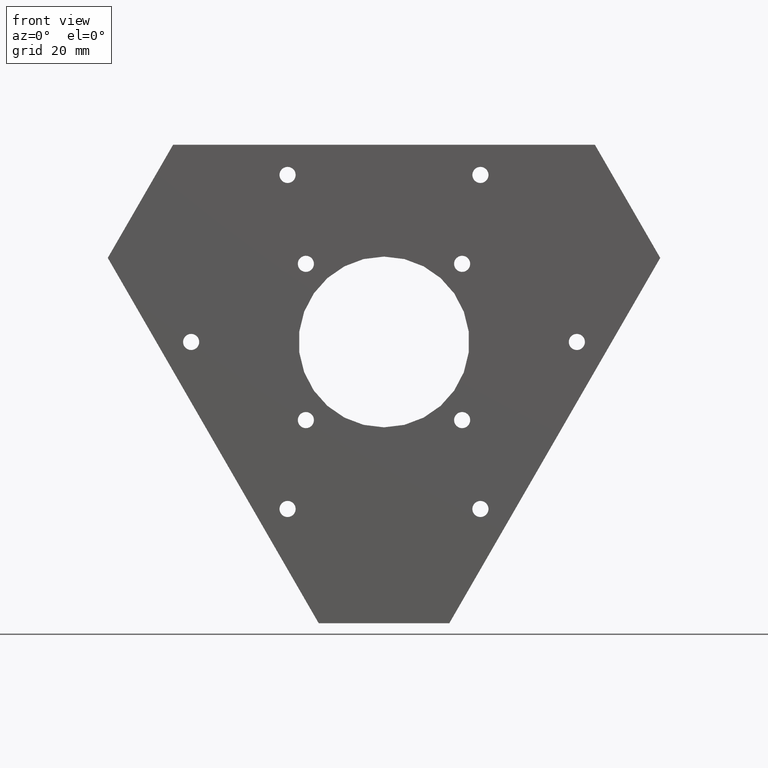
[diagram: clean part render]
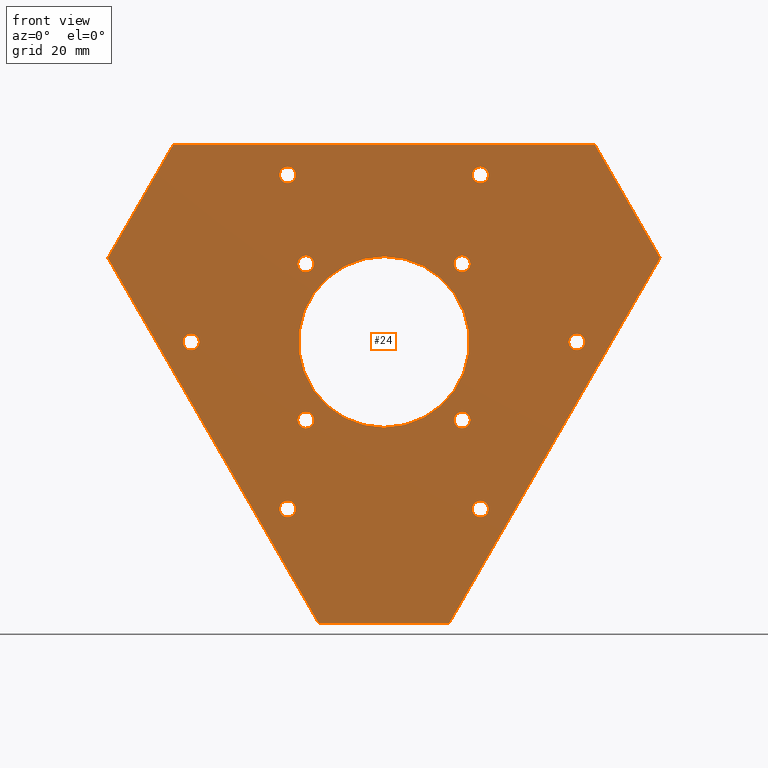
[diagram: same view with one face highlighted and labeled with its STEP entity id]
A machine part, front view. The second image highlights one B-rep face of the part: STEP entity #24.
In plain terms, the highlighted planar face has unit normal (0, 1, 0).
Its self-contained STEP definition (entity closure, byte-faithful):
#24 = ADVANCED_FACE ( 'NONE', ( #921, #920, #919, #918, #917, #916, #915, #914, #913, #912, #911, #910 ), #229, .F. ) ;
#34 = VERTEX_POINT ( 'NONE', #206 ) ;
#35 = CARTESIAN_POINT ( 'NONE',  ( -1.200000000000001500, 0.0000000000000000000, 2.078460969082651700 ) ) ;
#36 = VERTEX_POINT ( 'NONE', #205 ) ;
#39 = VERTEX_POINT ( 'NONE', #202 ) ;
#40 = VERTEX_POINT ( 'NONE', #201 ) ;
#43 = VERTEX_POINT ( 'NONE', #198 ) ;
#44 = VERTEX_POINT ( 'NONE', #197 ) ;
#45 = VERTEX_POINT ( 'NONE', #196 ) ;
#49 = VERTEX_POINT ( 'NONE', #193 ) ;
#50 = VERTEX_POINT ( 'NONE', #192 ) ;
#52 = VERTEX_POINT ( 'NONE', #190 ) ;
#56 = VERTEX_POINT ( 'NONE', #186 ) ;
#57 = VERTEX_POINT ( 'NONE', #185 ) ;
#61 = VERTEX_POINT ( 'NONE', #182 ) ;
#64 = VERTEX_POINT ( 'NONE', #179 ) ;
#65 = VERTEX_POINT ( 'NONE', #178 ) ;
#68 = VERTEX_POINT ( 'NONE', #175 ) ;
#69 = VERTEX_POINT ( 'NONE', #174 ) ;
#70 = VERTEX_POINT ( 'NONE', #173 ) ;
#72 = VERTEX_POINT ( 'NONE', #171 ) ;
#75 = VERTEX_POINT ( 'NONE', #168 ) ;
#77 = VERTEX_POINT ( 'NONE', #166 ) ;
#82 = VERTEX_POINT ( 'NONE', #163 ) ;
#83 = VERTEX_POINT ( 'NONE', #162 ) ;
#87 = VERTEX_POINT ( 'NONE', #159 ) ;
#88 = VERTEX_POINT ( 'NONE', #158 ) ;
#95 = DIRECTION ( 'NONE',  ( 0.0000000000000000000, 0.0000000000000000000, 1.000000000000000000 ) ) ;
#96 = DIRECTION ( 'NONE',  ( -0.0000000000000000000, 1.000000000000000000, -0.0000000000000000000 ) ) ;
#97 = CARTESIAN_POINT ( 'NONE',  ( 1.200000000000003100, 0.0000000000000000000, 2.078460969082650800 ) ) ;
#98 = VERTEX_POINT ( 'NONE', #153 ) ;
#99 = VERTEX_POINT ( 'NONE', #152 ) ;
#100 = VERTEX_POINT ( 'NONE', #151 ) ;
#112 = DIRECTION ( 'NONE',  ( 0.0000000000000000000, 0.0000000000000000000, 1.000000000000000000 ) ) ;
#113 = DIRECTION ( 'NONE',  ( -0.0000000000000000000, 1.000000000000000000, -0.0000000000000000000 ) ) ;
#114 = CARTESIAN_POINT ( 'NONE',  ( 0.9722718241314738400, -2.048885995248197400E-016, -0.9722718241315043700 ) ) ;
#122 = DIRECTION ( 'NONE',  ( 0.0000000000000000000, 0.0000000000000000000, 1.000000000000000000 ) ) ;
#123 = DIRECTION ( 'NONE',  ( -0.0000000000000000000, 1.000000000000000000, -0.0000000000000000000 ) ) ;
#124 = CARTESIAN_POINT ( 'NONE',  ( -0.9722718241315313500, -2.048885995248197400E-016, -0.9722718241314736200 ) ) ;
#132 = DIRECTION ( 'NONE',  ( 0.0000000000000000000, 0.0000000000000000000, 1.000000000000000000 ) ) ;
#133 = DIRECTION ( 'NONE',  ( -0.0000000000000000000, 1.000000000000000000, -0.0000000000000000000 ) ) ;
#134 = CARTESIAN_POINT ( 'NONE',  ( -0.9722718241315005900, -2.048885995248197400E-016, 0.9722718241315316800 ) ) ;
#147 = DIRECTION ( 'NONE',  ( 0.0000000000000000000, 0.0000000000000000000, 1.000000000000000000 ) ) ;
#149 = DIRECTION ( 'NONE',  ( -0.0000000000000000000, 1.000000000000000000, -0.0000000000000000000 ) ) ;
#150 = CARTESIAN_POINT ( 'NONE',  ( 0.9722718241315045900, -2.048885995248197400E-016, 0.9722718241315009300 ) ) ;
#151 = CARTESIAN_POINT ( 'NONE',  ( 0.0000000000000000000, 0.0000000000000000000, -1.062500000000000000 ) ) ;
#152 = CARTESIAN_POINT ( 'NONE',  ( -2.624785217660711800, 0.0000000000000000000, 2.453738644055909900 ) ) ;
#153 = CARTESIAN_POINT ( 'NONE',  ( 1.301187224094062400E-016, 0.0000000000000000000, 1.062500000000000000 ) ) ;
#158 = CARTESIAN_POINT ( 'NONE',  ( 2.400000000000000400, 0.0000000000000000000, 0.1005000000000243800 ) ) ;
#159 = CARTESIAN_POINT ( 'NONE',  ( 2.400000000000000400, 0.0000000000000000000, -0.1004999999999754700 ) ) ;
#162 = CARTESIAN_POINT ( 'NONE',  ( 1.199999999999939300, 0.0000000000000000000, -1.977960969082655800 ) ) ;
#163 = CARTESIAN_POINT ( 'NONE',  ( 1.199999999999939300, 0.0000000000000000000, -2.178960969082655900 ) ) ;
#166 = CARTESIAN_POINT ( 'NONE',  ( -1.200000000000061000, 0.0000000000000000000, -2.178960969082618600 ) ) ;
#168 = CARTESIAN_POINT ( 'NONE',  ( -0.9722718241315313500, -2.048885995248197400E-016, -0.8717718241314736900 ) ) ;
#171 = CARTESIAN_POINT ( 'NONE',  ( -0.9722718241315005900, -2.048885995248197400E-016, 1.072771824131531600 ) ) ;
#173 = CARTESIAN_POINT ( 'NONE',  ( -0.9722718241315313500, -2.048885995248197400E-016, -1.072771824131473400 ) ) ;
#174 = CARTESIAN_POINT ( 'NONE',  ( -2.400000000000029200, 0.0000000000000000000, 0.1005000000000528900 ) ) ;
#175 = CARTESIAN_POINT ( 'NONE',  ( -2.400000000000029200, 0.0000000000000000000, -0.1004999999999469700 ) ) ;
#178 = CARTESIAN_POINT ( 'NONE',  ( -1.200000000000001500, 0.0000000000000000000, 2.178960969082651500 ) ) ;
#179 = CARTESIAN_POINT ( 'NONE',  ( -1.200000000000001500, 0.0000000000000000000, 1.977960969082651600 ) ) ;
#182 = CARTESIAN_POINT ( 'NONE',  ( 1.200000000000003100, 0.0000000000000000000, 2.178960969082651000 ) ) ;
#185 = CARTESIAN_POINT ( 'NONE',  ( 0.9722718241314738400, -2.048885995248197400E-016, -0.8717718241315044500 ) ) ;
#186 = CARTESIAN_POINT ( 'NONE',  ( 0.9722718241314738400, -2.048885995248197400E-016, -1.072771824131504300 ) ) ;
#190 = CARTESIAN_POINT ( 'NONE',  ( -0.9722718241315005900, -2.048885995248197400E-016, 0.8717718241315317600 ) ) ;
#192 = CARTESIAN_POINT ( 'NONE',  ( 1.200000000000003100, 0.0000000000000000000, 1.977960969082651000 ) ) ;
#193 = CARTESIAN_POINT ( 'NONE',  ( 0.8126073911696439800, 0.0000000000000000000, -3.500000000000000000 ) ) ;
#196 = CARTESIAN_POINT ( 'NONE',  ( -1.200000000000061000, 0.0000000000000000000, -1.977960969082618800 ) ) ;
#197 = CARTESIAN_POINT ( 'NONE',  ( 0.9722718241315045900, -2.048885995248197400E-016, 1.072771824131500700 ) ) ;
#198 = CARTESIAN_POINT ( 'NONE',  ( 0.9722718241315045900, -2.048885995248197400E-016, 0.8717718241315010100 ) ) ;
#201 = CARTESIAN_POINT ( 'NONE',  ( -3.437392608830355900, 0.0000000000000000000, 1.046261355944089000 ) ) ;
#202 = CARTESIAN_POINT ( 'NONE',  ( -0.8126073911696442000, 0.0000000000000000000, -3.500000000000000400 ) ) ;
#205 = CARTESIAN_POINT ( 'NONE',  ( 3.437392608830355900, 0.0000000000000000000, 1.046261355944088800 ) ) ;
#206 = CARTESIAN_POINT ( 'NONE',  ( 2.624785217660712300, 0.0000000000000000000, 2.453738644055909900 ) ) ;
#226 = DIRECTION ( 'NONE',  ( 0.0000000000000000000, -0.0000000000000000000, 1.000000000000000000 ) ) ;
#227 = DIRECTION ( 'NONE',  ( 0.0000000000000000000, 1.000000000000000000, 0.0000000000000000000 ) ) ;
#228 = CARTESIAN_POINT ( 'NONE',  ( -2.624785217660711800, 0.0000000000000000000, 2.453738644055909900 ) ) ;
#229 = PLANE ( 'NONE',  #545 ) ;
#278 = DIRECTION ( 'NONE',  ( -0.0000000000000000000, 1.000000000000000000, -0.0000000000000000000 ) ) ;
#288 = DIRECTION ( 'NONE',  ( 0.0000000000000000000, 0.0000000000000000000, 1.000000000000000000 ) ) ;
#289 = DIRECTION ( 'NONE',  ( 0.0000000000000000000, 1.000000000000000000, 0.0000000000000000000 ) ) ;
#291 = CARTESIAN_POINT ( 'NONE',  ( 0.0000000000000000000, 0.0000000000000000000, 0.0000000000000000000 ) ) ;
#292 = DIRECTION ( 'NONE',  ( 1.000000000000000000, 0.0000000000000000000, 0.0000000000000000000 ) ) ;
#293 = CARTESIAN_POINT ( 'NONE',  ( -2.624785217660711800, 0.0000000000000000000, 2.453738644055909900 ) ) ;
#294 = DIRECTION ( 'NONE',  ( 0.4999999999999997200, 0.0000000000000000000, -0.8660254037844388200 ) ) ;
#296 = CARTESIAN_POINT ( 'NONE',  ( 2.624785217660712300, 0.0000000000000000000, 2.453738644055909900 ) ) ;
#297 = DIRECTION ( 'NONE',  ( -0.4999999999999998900, 0.0000000000000000000, -0.8660254037844386000 ) ) ;
#299 = CARTESIAN_POINT ( 'NONE',  ( 3.437392608830355900, 0.0000000000000000000, 1.046261355944088800 ) ) ;
#300 = DIRECTION ( 'NONE',  ( -1.000000000000000000, 0.0000000000000000000, -3.361830108057617300E-016 ) ) ;
#302 = CARTESIAN_POINT ( 'NONE',  ( 0.8126073911696439800, 0.0000000000000000000, -3.500000000000000000 ) ) ;
#303 = DIRECTION ( 'NONE',  ( -0.4999999999999998300, 0.0000000000000000000, 0.8660254037844386000 ) ) ;
#305 = CARTESIAN_POINT ( 'NONE',  ( -0.8126073911696442000, 0.0000000000000000000, -3.500000000000000400 ) ) ;
#306 = DIRECTION ( 'NONE',  ( 0.5000000000000000000, 0.0000000000000000000, 0.8660254037844386000 ) ) ;
#307 = CARTESIAN_POINT ( 'NONE',  ( -3.437392608830355900, 0.0000000000000000000, 1.046261355944089000 ) ) ;
#308 = DIRECTION ( 'NONE',  ( 0.0000000000000000000, 0.0000000000000000000, 1.000000000000000000 ) ) ;
#310 = DIRECTION ( 'NONE',  ( -0.0000000000000000000, 1.000000000000000000, -0.0000000000000000000 ) ) ;
#311 = CARTESIAN_POINT ( 'NONE',  ( 2.400000000000000400, 0.0000000000000000000, 2.445003954329515600E-014 ) ) ;
#313 = DIRECTION ( 'NONE',  ( 0.0000000000000000000, 0.0000000000000000000, 1.000000000000000000 ) ) ;
#314 = DIRECTION ( 'NONE',  ( -0.0000000000000000000, 1.000000000000000000, -0.0000000000000000000 ) ) ;
#315 = CARTESIAN_POINT ( 'NONE',  ( 1.199999999999939300, 0.0000000000000000000, -2.078460969082655700 ) ) ;
#317 = DIRECTION ( 'NONE',  ( 0.0000000000000000000, 0.0000000000000000000, 1.000000000000000000 ) ) ;
#318 = DIRECTION ( 'NONE',  ( -0.0000000000000000000, 1.000000000000000000, -0.0000000000000000000 ) ) ;
#320 = CARTESIAN_POINT ( 'NONE',  ( -1.200000000000061000, 0.0000000000000000000, -2.078460969082618800 ) ) ;
#321 = DIRECTION ( 'NONE',  ( 0.0000000000000000000, 0.0000000000000000000, 1.000000000000000000 ) ) ;
#322 = DIRECTION ( 'NONE',  ( -0.0000000000000000000, 1.000000000000000000, -0.0000000000000000000 ) ) ;
#323 = CARTESIAN_POINT ( 'NONE',  ( -2.400000000000029200, 0.0000000000000000000, 5.295852917287431900E-014 ) ) ;
#325 = DIRECTION ( 'NONE',  ( 0.0000000000000000000, 0.0000000000000000000, 1.000000000000000000 ) ) ;
#326 = DIRECTION ( 'NONE',  ( -0.0000000000000000000, 1.000000000000000000, -0.0000000000000000000 ) ) ;
#327 = CARTESIAN_POINT ( 'NONE',  ( -1.200000000000001500, 0.0000000000000000000, 2.078460969082651700 ) ) ;
#329 = DIRECTION ( 'NONE',  ( 0.0000000000000000000, 0.0000000000000000000, 1.000000000000000000 ) ) ;
#330 = DIRECTION ( 'NONE',  ( -0.0000000000000000000, 1.000000000000000000, -0.0000000000000000000 ) ) ;
#332 = CARTESIAN_POINT ( 'NONE',  ( 1.200000000000003100, 0.0000000000000000000, 2.078460969082650800 ) ) ;
#333 = DIRECTION ( 'NONE',  ( 0.0000000000000000000, 0.0000000000000000000, 1.000000000000000000 ) ) ;
#335 = DIRECTION ( 'NONE',  ( -0.0000000000000000000, 1.000000000000000000, -0.0000000000000000000 ) ) ;
#336 = CARTESIAN_POINT ( 'NONE',  ( 0.9722718241314738400, -2.048885995248197400E-016, -0.9722718241315043700 ) ) ;
#337 = DIRECTION ( 'NONE',  ( 0.0000000000000000000, 0.0000000000000000000, 1.000000000000000000 ) ) ;
#338 = DIRECTION ( 'NONE',  ( -0.0000000000000000000, 1.000000000000000000, -0.0000000000000000000 ) ) ;
#339 = CARTESIAN_POINT ( 'NONE',  ( -0.9722718241315313500, -2.048885995248197400E-016, -0.9722718241314736200 ) ) ;
#341 = DIRECTION ( 'NONE',  ( 0.0000000000000000000, 0.0000000000000000000, 1.000000000000000000 ) ) ;
#342 = DIRECTION ( 'NONE',  ( -0.0000000000000000000, 1.000000000000000000, -0.0000000000000000000 ) ) ;
#344 = CARTESIAN_POINT ( 'NONE',  ( -0.9722718241315005900, -2.048885995248197400E-016, 0.9722718241315316800 ) ) ;
#345 = DIRECTION ( 'NONE',  ( 0.0000000000000000000, 0.0000000000000000000, 1.000000000000000000 ) ) ;
#347 = DIRECTION ( 'NONE',  ( -0.0000000000000000000, 1.000000000000000000, -0.0000000000000000000 ) ) ;
#348 = CARTESIAN_POINT ( 'NONE',  ( 0.9722718241315045900, -2.048885995248197400E-016, 0.9722718241315009300 ) ) ;
#388 = DIRECTION ( 'NONE',  ( 0.0000000000000000000, 0.0000000000000000000, 1.000000000000000000 ) ) ;
#389 = DIRECTION ( 'NONE',  ( 0.0000000000000000000, 1.000000000000000000, 0.0000000000000000000 ) ) ;
#390 = CARTESIAN_POINT ( 'NONE',  ( 0.0000000000000000000, 0.0000000000000000000, 0.0000000000000000000 ) ) ;
#429 = DIRECTION ( 'NONE',  ( 0.0000000000000000000, 0.0000000000000000000, 1.000000000000000000 ) ) ;
#431 = DIRECTION ( 'NONE',  ( -0.0000000000000000000, 1.000000000000000000, -0.0000000000000000000 ) ) ;
#432 = CARTESIAN_POINT ( 'NONE',  ( 2.400000000000000400, 0.0000000000000000000, 2.445003954329515600E-014 ) ) ;
#443 = DIRECTION ( 'NONE',  ( 0.0000000000000000000, 0.0000000000000000000, 1.000000000000000000 ) ) ;
#444 = DIRECTION ( 'NONE',  ( -0.0000000000000000000, 1.000000000000000000, -0.0000000000000000000 ) ) ;
#446 = CARTESIAN_POINT ( 'NONE',  ( 1.199999999999939300, 0.0000000000000000000, -2.078460969082655700 ) ) ;
#457 = DIRECTION ( 'NONE',  ( 0.0000000000000000000, 0.0000000000000000000, 1.000000000000000000 ) ) ;
#458 = DIRECTION ( 'NONE',  ( -0.0000000000000000000, 1.000000000000000000, -0.0000000000000000000 ) ) ;
#459 = CARTESIAN_POINT ( 'NONE',  ( -1.200000000000061000, 0.0000000000000000000, -2.078460969082618800 ) ) ;
#470 = DIRECTION ( 'NONE',  ( 0.0000000000000000000, 0.0000000000000000000, 1.000000000000000000 ) ) ;
#472 = DIRECTION ( 'NONE',  ( -0.0000000000000000000, 1.000000000000000000, -0.0000000000000000000 ) ) ;
#473 = CARTESIAN_POINT ( 'NONE',  ( -2.400000000000029200, 0.0000000000000000000, 5.295852917287431900E-014 ) ) ;
#483 = DIRECTION ( 'NONE',  ( 0.0000000000000000000, 0.0000000000000000000, 1.000000000000000000 ) ) ;
#495 = AXIS2_PLACEMENT_3D ( 'NONE', #291, #289, #288 ) ;
#496 = AXIS2_PLACEMENT_3D ( 'NONE', #311, #310, #308 ) ;
#497 = AXIS2_PLACEMENT_3D ( 'NONE', #315, #314, #313 ) ;
#498 = AXIS2_PLACEMENT_3D ( 'NONE', #320, #318, #317 ) ;
#499 = AXIS2_PLACEMENT_3D ( 'NONE', #323, #322, #321 ) ;
#500 = AXIS2_PLACEMENT_3D ( 'NONE', #327, #326, #325 ) ;
#501 = AXIS2_PLACEMENT_3D ( 'NONE', #332, #330, #329 ) ;
#502 = AXIS2_PLACEMENT_3D ( 'NONE', #336, #335, #333 ) ;
#503 = AXIS2_PLACEMENT_3D ( 'NONE', #339, #338, #337 ) ;
#504 = AXIS2_PLACEMENT_3D ( 'NONE', #344, #342, #341 ) ;
#505 = AXIS2_PLACEMENT_3D ( 'NONE', #348, #347, #345 ) ;
#512 = AXIS2_PLACEMENT_3D ( 'NONE', #390, #389, #388 ) ;
#520 = AXIS2_PLACEMENT_3D ( 'NONE', #432, #431, #429 ) ;
#522 = AXIS2_PLACEMENT_3D ( 'NONE', #446, #444, #443 ) ;
#524 = AXIS2_PLACEMENT_3D ( 'NONE', #459, #458, #457 ) ;
#526 = AXIS2_PLACEMENT_3D ( 'NONE', #473, #472, #470 ) ;
#528 = AXIS2_PLACEMENT_3D ( 'NONE', #35, #278, #483 ) ;
#530 = AXIS2_PLACEMENT_3D ( 'NONE', #97, #96, #95 ) ;
#532 = AXIS2_PLACEMENT_3D ( 'NONE', #114, #113, #112 ) ;
#534 = AXIS2_PLACEMENT_3D ( 'NONE', #124, #123, #122 ) ;
#536 = AXIS2_PLACEMENT_3D ( 'NONE', #134, #133, #132 ) ;
#538 = AXIS2_PLACEMENT_3D ( 'NONE', #150, #149, #147 ) ;
#545 = AXIS2_PLACEMENT_3D ( 'NONE', #228, #227, #226 ) ;
#569 = EDGE_CURVE ( 'NONE', #43, #44, #886, .T. ) ;
#573 = EDGE_CURVE ( 'NONE', #52, #72, #880, .T. ) ;
#577 = EDGE_CURVE ( 'NONE', #70, #75, #874, .T. ) ;
#581 = EDGE_CURVE ( 'NONE', #56, #57, #868, .T. ) ;
#585 = EDGE_CURVE ( 'NONE', #50, #61, #862, .T. ) ;
#589 = EDGE_CURVE ( 'NONE', #64, #65, #856, .T. ) ;
#593 = EDGE_CURVE ( 'NONE', #68, #69, #850, .T. ) ;
#597 = EDGE_CURVE ( 'NONE', #77, #45, #844, .T. ) ;
#601 = EDGE_CURVE ( 'NONE', #82, #83, #838, .T. ) ;
#605 = EDGE_CURVE ( 'NONE', #87, #88, #832, .T. ) ;
#617 = EDGE_CURVE ( 'NONE', #100, #98, #817, .T. ) ;
#630 = EDGE_CURVE ( 'NONE', #44, #43, #798, .T. ) ;
#631 = EDGE_CURVE ( 'NONE', #72, #52, #797, .T. ) ;
#632 = EDGE_CURVE ( 'NONE', #75, #70, #796, .T. ) ;
#633 = EDGE_CURVE ( 'NONE', #57, #56, #795, .T. ) ;
#634 = EDGE_CURVE ( 'NONE', #61, #50, #794, .T. ) ;
#635 = EDGE_CURVE ( 'NONE', #65, #64, #793, .T. ) ;
#636 = EDGE_CURVE ( 'NONE', #69, #68, #792, .T. ) ;
#637 = EDGE_CURVE ( 'NONE', #45, #77, #791, .T. ) ;
#638 = EDGE_CURVE ( 'NONE', #83, #82, #790, .T. ) ;
#639 = EDGE_CURVE ( 'NONE', #88, #87, #788, .T. ) ;
#640 = EDGE_CURVE ( 'NONE', #40, #99, #789, .T. ) ;
#641 = EDGE_CURVE ( 'NONE', #39, #40, #786, .T. ) ;
#642 = EDGE_CURVE ( 'NONE', #49, #39, #784, .T. ) ;
#643 = EDGE_CURVE ( 'NONE', #36, #49, #782, .T. ) ;
#644 = EDGE_CURVE ( 'NONE', #34, #36, #780, .T. ) ;
#645 = EDGE_CURVE ( 'NONE', #99, #34, #778, .T. ) ;
#646 = EDGE_CURVE ( 'NONE', #98, #100, #775, .T. ) ;
#698 = ORIENTED_EDGE ( 'NONE', *, *, #630, .T. ) ;
#699 = ORIENTED_EDGE ( 'NONE', *, *, #569, .T. ) ;
#700 = ORIENTED_EDGE ( 'NONE', *, *, #631, .T. ) ;
#701 = ORIENTED_EDGE ( 'NONE', *, *, #573, .T. ) ;
#702 = ORIENTED_EDGE ( 'NONE', *, *, #632, .T. ) ;
#703 = ORIENTED_EDGE ( 'NONE', *, *, #577, .T. ) ;
#704 = ORIENTED_EDGE ( 'NONE', *, *, #633, .T. ) ;
#705 = ORIENTED_EDGE ( 'NONE', *, *, #581, .T. ) ;
#706 = ORIENTED_EDGE ( 'NONE', *, *, #634, .T. ) ;
#775 = CIRCLE ( 'NONE', #495, 1.062500000000000000 ) ;
#777 = VECTOR ( 'NONE', #292, 39.37007874015748100 ) ;
#778 = LINE ( 'NONE', #293, #777 ) ;
#779 = VECTOR ( 'NONE', #294, 39.37007874015748900 ) ;
#780 = LINE ( 'NONE', #296, #779 ) ;
#781 = VECTOR ( 'NONE', #297, 39.37007874015748900 ) ;
#782 = LINE ( 'NONE', #299, #781 ) ;
#783 = VECTOR ( 'NONE', #300, 39.37007874015748100 ) ;
#784 = LINE ( 'NONE', #302, #783 ) ;
#785 = VECTOR ( 'NONE', #303, 39.37007874015748900 ) ;
#786 = LINE ( 'NONE', #305, #785 ) ;
#787 = VECTOR ( 'NONE', #306, 39.37007874015748900 ) ;
#788 = CIRCLE ( 'NONE', #496, 0.1004999999999999200 ) ;
#789 = LINE ( 'NONE', #307, #787 ) ;
#790 = CIRCLE ( 'NONE', #497, 0.1004999999999999200 ) ;
#791 = CIRCLE ( 'NONE', #498, 0.1004999999999999200 ) ;
#792 = CIRCLE ( 'NONE', #499, 0.1004999999999999200 ) ;
#793 = CIRCLE ( 'NONE', #500, 0.1004999999999999200 ) ;
#794 = CIRCLE ( 'NONE', #501, 0.1004999999999999200 ) ;
#795 = CIRCLE ( 'NONE', #502, 0.1004999999999999200 ) ;
#796 = CIRCLE ( 'NONE', #503, 0.1004999999999999200 ) ;
#797 = CIRCLE ( 'NONE', #504, 0.1004999999999999200 ) ;
#798 = CIRCLE ( 'NONE', #505, 0.1004999999999999200 ) ;
#817 = CIRCLE ( 'NONE', #512, 1.062500000000000000 ) ;
#832 = CIRCLE ( 'NONE', #520, 0.1004999999999999200 ) ;
#838 = CIRCLE ( 'NONE', #522, 0.1004999999999999200 ) ;
#844 = CIRCLE ( 'NONE', #524, 0.1004999999999999200 ) ;
#850 = CIRCLE ( 'NONE', #526, 0.1004999999999999200 ) ;
#856 = CIRCLE ( 'NONE', #528, 0.1004999999999999200 ) ;
#862 = CIRCLE ( 'NONE', #530, 0.1004999999999999200 ) ;
#868 = CIRCLE ( 'NONE', #532, 0.1004999999999999200 ) ;
#874 = CIRCLE ( 'NONE', #534, 0.1004999999999999200 ) ;
#880 = CIRCLE ( 'NONE', #536, 0.1004999999999999200 ) ;
#886 = CIRCLE ( 'NONE', #538, 0.1004999999999999200 ) ;
#910 = FACE_BOUND ( 'NONE', #1038, .T. ) ;
#911 = FACE_OUTER_BOUND ( 'NONE', #1039, .T. ) ;
#912 = FACE_BOUND ( 'NONE', #1040, .T. ) ;
#913 = FACE_BOUND ( 'NONE', #1041, .T. ) ;
#914 = FACE_BOUND ( 'NONE', #1042, .T. ) ;
#915 = FACE_BOUND ( 'NONE', #1006, .T. ) ;
#916 = FACE_BOUND ( 'NONE', #1005, .T. ) ;
#917 = FACE_BOUND ( 'NONE', #1004, .T. ) ;
#918 = FACE_BOUND ( 'NONE', #1003, .T. ) ;
#919 = FACE_BOUND ( 'NONE', #1002, .T. ) ;
#920 = FACE_BOUND ( 'NONE', #1022, .T. ) ;
#921 = FACE_BOUND ( 'NONE', #1019, .T. ) ;
#963 = ORIENTED_EDGE ( 'NONE', *, *, #585, .T. ) ;
#964 = ORIENTED_EDGE ( 'NONE', *, *, #635, .T. ) ;
#965 = ORIENTED_EDGE ( 'NONE', *, *, #589, .T. ) ;
#966 = ORIENTED_EDGE ( 'NONE', *, *, #636, .T. ) ;
#967 = ORIENTED_EDGE ( 'NONE', *, *, #593, .T. ) ;
#968 = ORIENTED_EDGE ( 'NONE', *, *, #637, .T. ) ;
#969 = ORIENTED_EDGE ( 'NONE', *, *, #597, .T. ) ;
#970 = ORIENTED_EDGE ( 'NONE', *, *, #638, .T. ) ;
#971 = ORIENTED_EDGE ( 'NONE', *, *, #601, .T. ) ;
#972 = ORIENTED_EDGE ( 'NONE', *, *, #639, .T. ) ;
#973 = ORIENTED_EDGE ( 'NONE', *, *, #605, .T. ) ;
#974 = ORIENTED_EDGE ( 'NONE', *, *, #640, .F. ) ;
#975 = ORIENTED_EDGE ( 'NONE', *, *, #641, .F. ) ;
#976 = ORIENTED_EDGE ( 'NONE', *, *, #642, .F. ) ;
#977 = ORIENTED_EDGE ( 'NONE', *, *, #643, .F. ) ;
#978 = ORIENTED_EDGE ( 'NONE', *, *, #644, .F. ) ;
#979 = ORIENTED_EDGE ( 'NONE', *, *, #645, .F. ) ;
#980 = ORIENTED_EDGE ( 'NONE', *, *, #617, .T. ) ;
#981 = ORIENTED_EDGE ( 'NONE', *, *, #646, .T. ) ;
#1002 = EDGE_LOOP ( 'NONE', ( #702, #703 ) ) ;
#1003 = EDGE_LOOP ( 'NONE', ( #704, #705 ) ) ;
#1004 = EDGE_LOOP ( 'NONE', ( #706, #963 ) ) ;
#1005 = EDGE_LOOP ( 'NONE', ( #964, #965 ) ) ;
#1006 = EDGE_LOOP ( 'NONE', ( #966, #967 ) ) ;
#1019 = EDGE_LOOP ( 'NONE', ( #698, #699 ) ) ;
#1022 = EDGE_LOOP ( 'NONE', ( #700, #701 ) ) ;
#1038 = EDGE_LOOP ( 'NONE', ( #980, #981 ) ) ;
#1039 = EDGE_LOOP ( 'NONE', ( #974, #975, #976, #977, #978, #979 ) ) ;
#1040 = EDGE_LOOP ( 'NONE', ( #972, #973 ) ) ;
#1041 = EDGE_LOOP ( 'NONE', ( #970, #971 ) ) ;
#1042 = EDGE_LOOP ( 'NONE', ( #968, #969 ) ) ;